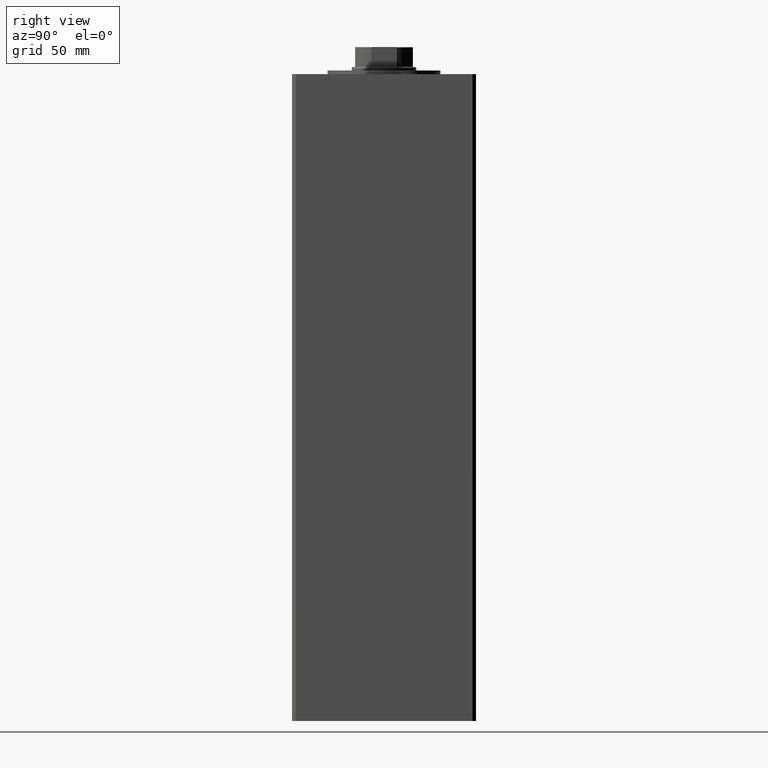
[diagram: clean part render]
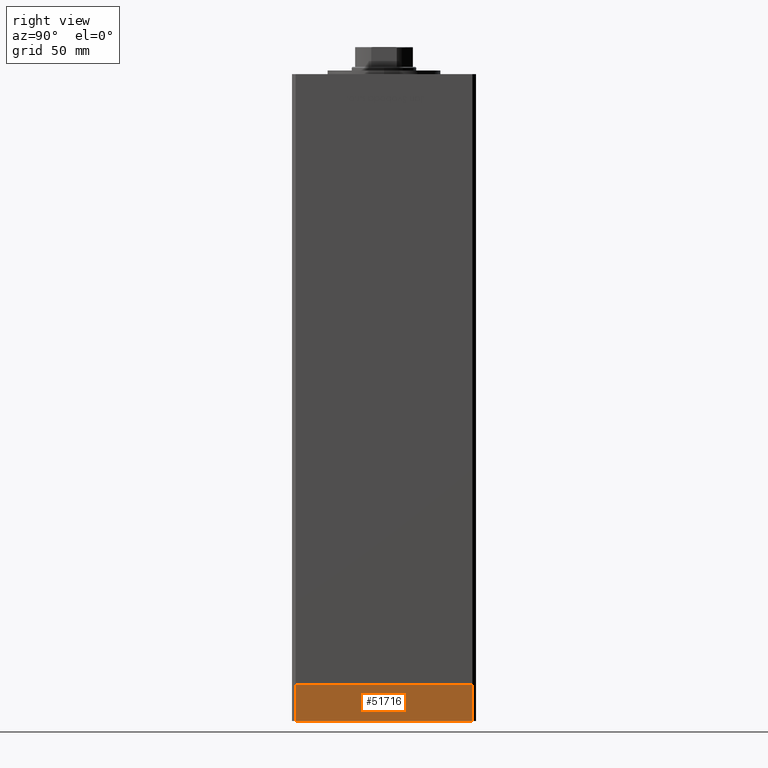
[diagram: same view with one face highlighted and labeled with its STEP entity id]
A machine part, right view. The second image highlights one B-rep face of the part: STEP entity #51716.
In plain terms, the highlighted planar face has unit normal (1, 0, 0).
Its self-contained STEP definition (entity closure, byte-faithful):
#242 = LINE ( 'NONE', #23968, #33316 ) ;
#2000 = VERTEX_POINT ( 'NONE', #33048 ) ;
#2793 = DIRECTION ( 'NONE',  ( 0.000000000000000000, 0.000000000000000000, 1.000000000000000000 ) ) ;
#2953 = EDGE_CURVE ( 'NONE', #16673, #2000, #242, .T. ) ;
#2955 = LINE ( 'NONE', #7180, #14400 ) ;
#3243 = LINE ( 'NONE', #43071, #24326 ) ;
#6949 = DIRECTION ( 'NONE',  ( 0.000000000000000000, -1.000000000000000000, 0.000000000000000000 ) ) ;
#7180 = CARTESIAN_POINT ( 'NONE',  ( -60.00000000000000000, -49.00000000000000000, -20.00000000000000000 ) ) ;
#7450 = AXIS2_PLACEMENT_3D ( 'NONE', #41484, #29091, #46221 ) ;
#7786 = EDGE_LOOP ( 'NONE', ( #15744, #39696, #25559, #31435 ) ) ;
#13690 = CARTESIAN_POINT ( 'NONE',  ( -60.00000000000000000, 48.99999999999995737, -20.00000000000000000 ) ) ;
#14400 = VECTOR ( 'NONE', #19068, 1000.000000000000000 ) ;
#14644 = CARTESIAN_POINT ( 'NONE',  ( -60.00000000000000000, -49.00000000000000000, -20.00000000000000000 ) ) ;
#15744 = ORIENTED_EDGE ( 'NONE', *, *, #2953, .F. ) ;
#16262 = EDGE_CURVE ( 'NONE', #42368, #35979, #3243, .T. ) ;
#16673 = VERTEX_POINT ( 'NONE', #18658 ) ;
#18658 = CARTESIAN_POINT ( 'NONE',  ( -60.00000000000000000, 48.99999999999995737, 0.000000000000000000 ) ) ;
#19068 = DIRECTION ( 'NONE',  ( 0.000000000000000000, 0.000000000000000000, 1.000000000000000000 ) ) ;
#20284 = DIRECTION ( 'NONE',  ( 0.000000000000000000, -1.000000000000000000, 0.000000000000000000 ) ) ;
#21459 = EDGE_CURVE ( 'NONE', #35979, #2000, #2955, .T. ) ;
#23968 = CARTESIAN_POINT ( 'NONE',  ( -60.00000000000000000, 48.99999999999995737, 0.000000000000000000 ) ) ;
#24326 = VECTOR ( 'NONE', #6949, 1000.000000000000000 ) ;
#25151 = PLANE ( 'NONE',  #7450 ) ;
#25559 = ORIENTED_EDGE ( 'NONE', *, *, #16262, .T. ) ;
#28578 = FACE_OUTER_BOUND ( 'NONE', #7786, .T. ) ;
#29091 = DIRECTION ( 'NONE',  ( -1.000000000000000000, 0.000000000000000000, 0.000000000000000000 ) ) ;
#31435 = ORIENTED_EDGE ( 'NONE', *, *, #21459, .T. ) ;
#33048 = CARTESIAN_POINT ( 'NONE',  ( -60.00000000000000000, -49.00000000000000000, 0.000000000000000000 ) ) ;
#33316 = VECTOR ( 'NONE', #20284, 1000.000000000000000 ) ;
#35979 = VERTEX_POINT ( 'NONE', #14644 ) ;
#39093 = VECTOR ( 'NONE', #2793, 1000.000000000000000 ) ;
#39625 = EDGE_CURVE ( 'NONE', #42368, #16673, #49802, .T. ) ;
#39696 = ORIENTED_EDGE ( 'NONE', *, *, #39625, .F. ) ;
#39956 = CARTESIAN_POINT ( 'NONE',  ( -60.00000000000000000, 48.99999999999995737, -20.00000000000000000 ) ) ;
#41484 = CARTESIAN_POINT ( 'NONE',  ( -60.00000000000000000, 48.99999999999995737, -20.00000000000000000 ) ) ;
#42368 = VERTEX_POINT ( 'NONE', #39956 ) ;
#43071 = CARTESIAN_POINT ( 'NONE',  ( -60.00000000000000000, 48.99999999999995737, -20.00000000000000000 ) ) ;
#46221 = DIRECTION ( 'NONE',  ( 0.000000000000000000, 0.000000000000000000, 1.000000000000000000 ) ) ;
#49802 = LINE ( 'NONE', #13690, #39093 ) ;
#51716 = ADVANCED_FACE ( 'NONE', ( #28578 ), #25151, .T. ) ;